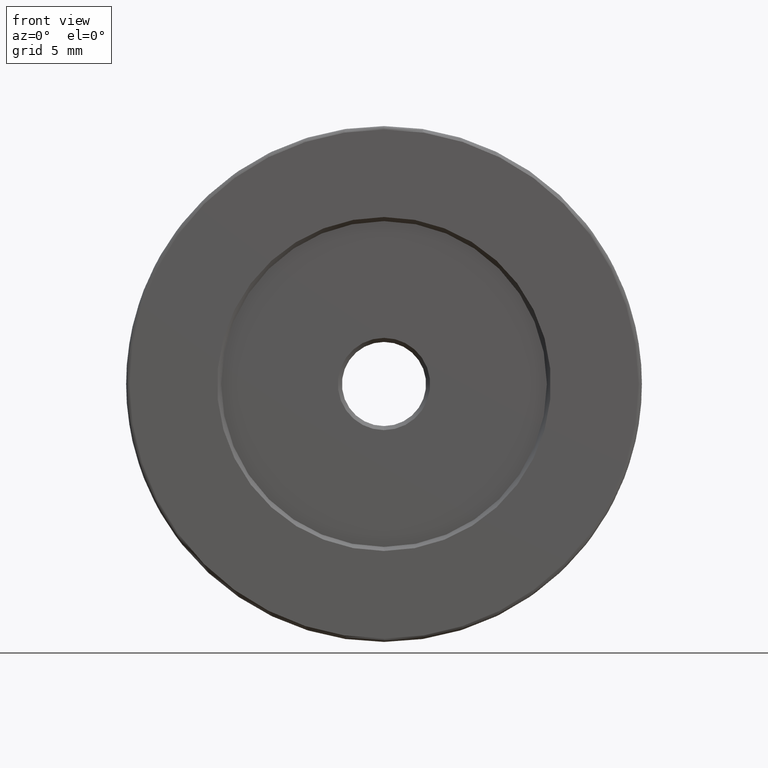
[diagram: clean part render]
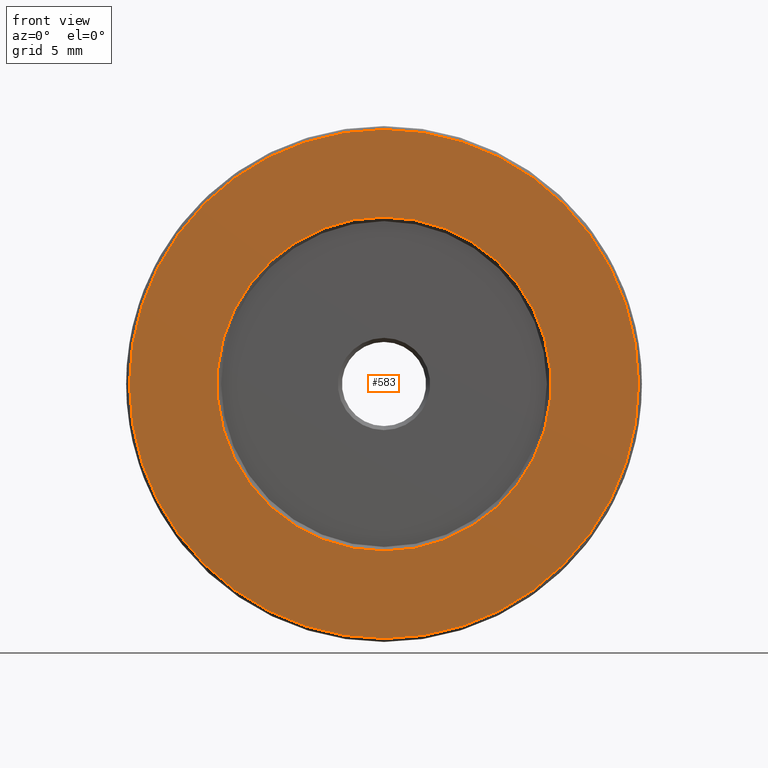
[diagram: same view with one face highlighted and labeled with its STEP entity id]
A machine part, front view. The second image highlights one B-rep face of the part: STEP entity #583.
In plain terms, the highlighted planar face has unit normal (0, 1, 0).
Its self-contained STEP definition (entity closure, byte-faithful):
#5 = AXIS2_PLACEMENT_3D ( 'NONE', #425, #193, #385 ) ;
#19 = CARTESIAN_POINT ( 'NONE',  ( -7.546808913101048510, -4.893595127302727832, 38.00000000000000000 ) ) ;
#22 = CIRCLE ( 'NONE', #362, 12.30000000000001315 ) ;
#48 = PLANE ( 'NONE',  #5 ) ;
#94 = CARTESIAN_POINT ( 'NONE',  ( -7.546808913101046734, -4.893595127302727832, 50.30000000000001137 ) ) ;
#97 = EDGE_CURVE ( 'NONE', #125, #604, #600, .T. ) ;
#114 = EDGE_LOOP ( 'NONE', ( #482, #489 ) ) ;
#118 = FACE_OUTER_BOUND ( 'NONE', #114, .T. ) ;
#125 = VERTEX_POINT ( 'NONE', #477 ) ;
#141 = DIRECTION ( 'NONE',  ( 0.000000000000000000, 1.000000000000000000, 0.000000000000000000 ) ) ;
#155 = FACE_BOUND ( 'NONE', #590, .T. ) ;
#156 = DIRECTION ( 'NONE',  ( 0.000000000000000000, 1.000000000000000000, 0.000000000000000000 ) ) ;
#161 = AXIS2_PLACEMENT_3D ( 'NONE', #390, #520, #203 ) ;
#181 = EDGE_CURVE ( 'NONE', #320, #250, #496, .T. ) ;
#193 = DIRECTION ( 'NONE',  ( 0.000000000000000000, 1.000000000000000000, 0.000000000000000000 ) ) ;
#203 = DIRECTION ( 'NONE',  ( 0.000000000000000000, 0.000000000000000000, 1.000000000000000000 ) ) ;
#205 = CARTESIAN_POINT ( 'NONE',  ( -7.546808913101048510, -4.893595127302727832, 56.74999999999999289 ) ) ;
#250 = VERTEX_POINT ( 'NONE', #274 ) ;
#262 = DIRECTION ( 'NONE',  ( -0.000000000000000000, -1.000000000000000000, -0.000000000000000000 ) ) ;
#263 = EDGE_CURVE ( 'NONE', #604, #125, #516, .T. ) ;
#274 = CARTESIAN_POINT ( 'NONE',  ( -7.546808913101048510, -4.893595127302727832, 25.69999999999998508 ) ) ;
#320 = VERTEX_POINT ( 'NONE', #94 ) ;
#330 = DIRECTION ( 'NONE',  ( 0.000000000000000000, 0.000000000000000000, 1.000000000000000000 ) ) ;
#356 = ORIENTED_EDGE ( 'NONE', *, *, #432, .T. ) ;
#362 = AXIS2_PLACEMENT_3D ( 'NONE', #613, #141, #330 ) ;
#385 = DIRECTION ( 'NONE',  ( 0.000000000000000000, -0.000000000000000000, 1.000000000000000000 ) ) ;
#390 = CARTESIAN_POINT ( 'NONE',  ( -7.546808913101048510, -4.893595127302727832, 38.00000000000000000 ) ) ;
#391 = ORIENTED_EDGE ( 'NONE', *, *, #181, .T. ) ;
#399 = DIRECTION ( 'NONE',  ( 0.000000000000000000, 0.000000000000000000, 1.000000000000000000 ) ) ;
#403 = AXIS2_PLACEMENT_3D ( 'NONE', #500, #156, #410 ) ;
#410 = DIRECTION ( 'NONE',  ( 0.000000000000000000, 0.000000000000000000, 1.000000000000000000 ) ) ;
#425 = CARTESIAN_POINT ( 'NONE',  ( -7.546808913101048510, -4.893595127302727832, 38.00000000000000000 ) ) ;
#432 = EDGE_CURVE ( 'NONE', #250, #320, #22, .T. ) ;
#477 = CARTESIAN_POINT ( 'NONE',  ( -7.546808913101045846, -4.893595127302727832, 19.25000000000000000 ) ) ;
#482 = ORIENTED_EDGE ( 'NONE', *, *, #263, .T. ) ;
#489 = ORIENTED_EDGE ( 'NONE', *, *, #97, .T. ) ;
#496 = CIRCLE ( 'NONE', #403, 12.30000000000001315 ) ;
#500 = CARTESIAN_POINT ( 'NONE',  ( -7.546808913101048510, -4.893595127302727832, 38.00000000000000000 ) ) ;
#516 = CIRCLE ( 'NONE', #562, 18.74999999999999645 ) ;
#520 = DIRECTION ( 'NONE',  ( -0.000000000000000000, -1.000000000000000000, -0.000000000000000000 ) ) ;
#562 = AXIS2_PLACEMENT_3D ( 'NONE', #19, #262, #399 ) ;
#583 = ADVANCED_FACE ( 'NONE', ( #118, #155 ), #48, .F. ) ;
#590 = EDGE_LOOP ( 'NONE', ( #356, #391 ) ) ;
#600 = CIRCLE ( 'NONE', #161, 18.74999999999999645 ) ;
#604 = VERTEX_POINT ( 'NONE', #205 ) ;
#613 = CARTESIAN_POINT ( 'NONE',  ( -7.546808913101048510, -4.893595127302727832, 38.00000000000000000 ) ) ;